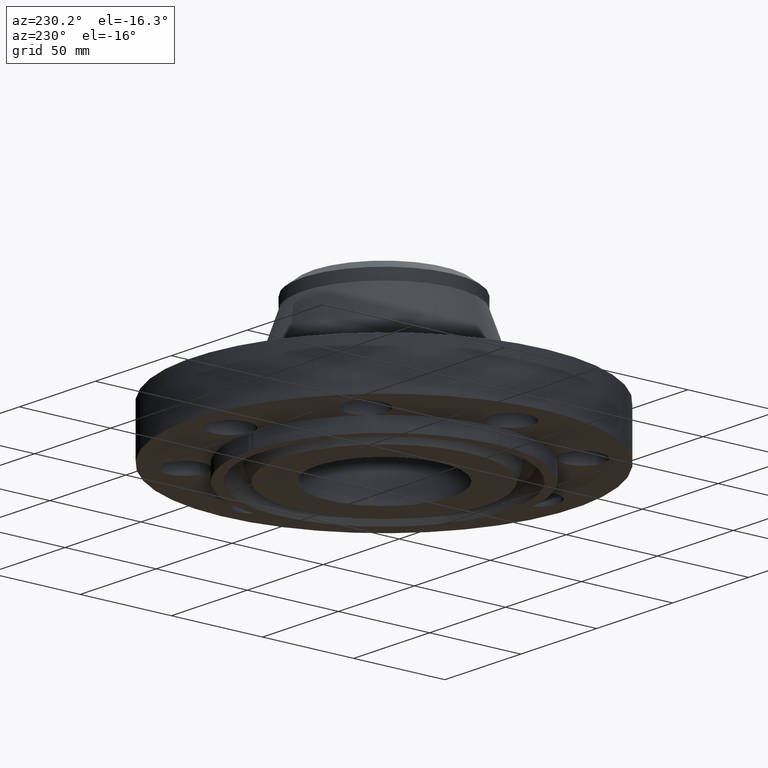
[diagram: clean part render]
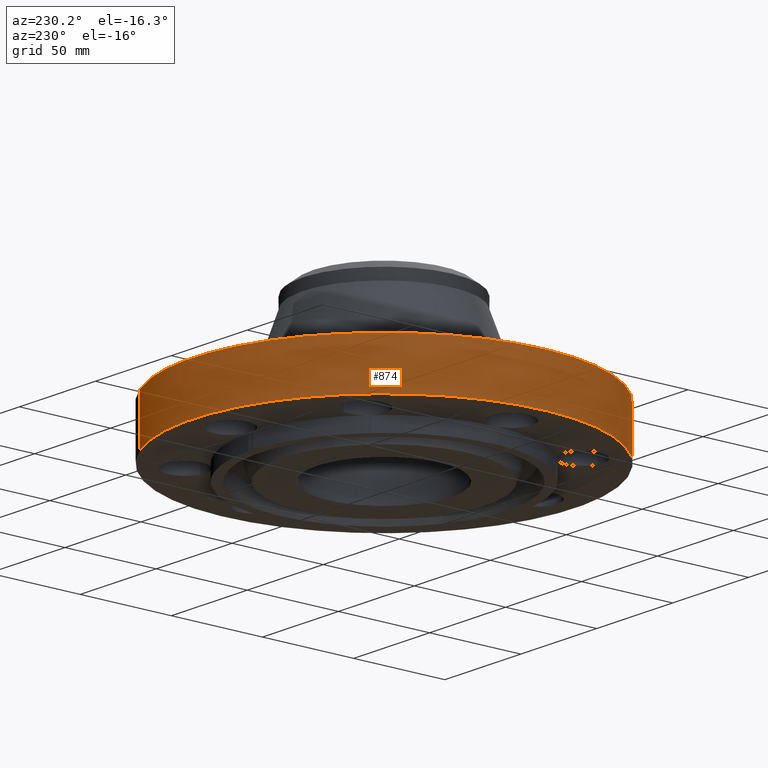
[diagram: same view with one face highlighted and labeled with its STEP entity id]
A machine part, auxiliary view. The second image highlights one B-rep face of the part: STEP entity #874.
In plain terms, the highlighted cylindrical surface (partial cylindrical patch) has radius 104.775 mm, axis along (0, 0, -1).
Its self-contained STEP definition (entity closure, byte-faithful):
#169=AXIS2_PLACEMENT_3D('Circle Axis2P3D',#167,#168,$) ;
#461=AXIS2_PLACEMENT_3D('Circle Axis2P3D',#459,#460,$) ;
#856=AXIS2_PLACEMENT_3D('Cylinder Axis2P3D',#853,#854,#855) ;
#167=CARTESIAN_POINT('Axis2P3D Location',(1.1189649382E-015,-4.66552430985E-012,0.)) ;
#171=CARTESIAN_POINT('Vertex',(-1.97763034675,-3.62002806781,0.)) ;
#173=CARTESIAN_POINT('Vertex',(1.97763034675,3.62002806781,-7.95024588595E-013)) ;
#454=CARTESIAN_POINT('Vertex',(1.97763034678,3.62002806783,1.06)) ;
#456=CARTESIAN_POINT('Vertex',(-1.97763034675,-3.62002806781,1.06000000002)) ;
#459=CARTESIAN_POINT('Axis2P3D Location',(1.1189649382E-015,5.33466534289E-012,1.06)) ;
#853=CARTESIAN_POINT('Axis2P3D Location',(0.,0.,1.37350000001)) ;
#858=CARTESIAN_POINT('Line Origine',(-1.97763034675,-3.62002806781,0.530000000011)) ;
#863=CARTESIAN_POINT('Line Origine',(1.97763034675,3.62002806781,0.530000000011)) ;
#168=DIRECTION('Axis2P3D Direction',(0.,0.,-0.0393700787402)) ;
#460=DIRECTION('Axis2P3D Direction',(0.,0.,-0.0393700787402)) ;
#854=DIRECTION('Axis2P3D Direction',(0.,0.,-0.0393700787402)) ;
#855=DIRECTION('Axis2P3D XDirection',(-0.0188750212049,-0.0345504945626,0.)) ;
#859=DIRECTION('Vector Direction',(0.,0.,-0.0393700787402)) ;
#864=DIRECTION('Vector Direction',(0.,0.,-0.0393700787402)) ;
#860=VECTOR('Line Direction',#859,0.0393700787402) ;
#865=VECTOR('Line Direction',#864,0.0393700787402) ;
#869=ORIENTED_EDGE('',*,*,#175,.F.) ;
#870=ORIENTED_EDGE('',*,*,#862,.T.) ;
#871=ORIENTED_EDGE('',*,*,#463,.T.) ;
#872=ORIENTED_EDGE('',*,*,#867,.F.) ;
#874=ADVANCED_FACE('PartBody',(#873),#857,.T.) ;
#170=CIRCLE('generated circle',#169,4.12500000004) ;
#462=CIRCLE('generated circle',#461,4.12500000004) ;
#857=CYLINDRICAL_SURFACE('generated cylinder',#856,4.12500000002) ;
#175=EDGE_CURVE('',#172,#174,#170,.T.) ;
#463=EDGE_CURVE('',#457,#455,#462,.T.) ;
#862=EDGE_CURVE('',#172,#457,#861,.F.) ;
#867=EDGE_CURVE('',#174,#455,#866,.F.) ;
#868=EDGE_LOOP('',(#869,#870,#871,#872)) ;
#873=FACE_OUTER_BOUND('',#868,.T.) ;
#861=LINE('Line',#858,#860) ;
#866=LINE('Line',#863,#865) ;
#172=VERTEX_POINT('',#171) ;
#174=VERTEX_POINT('',#173) ;
#455=VERTEX_POINT('',#454) ;
#457=VERTEX_POINT('',#456) ;